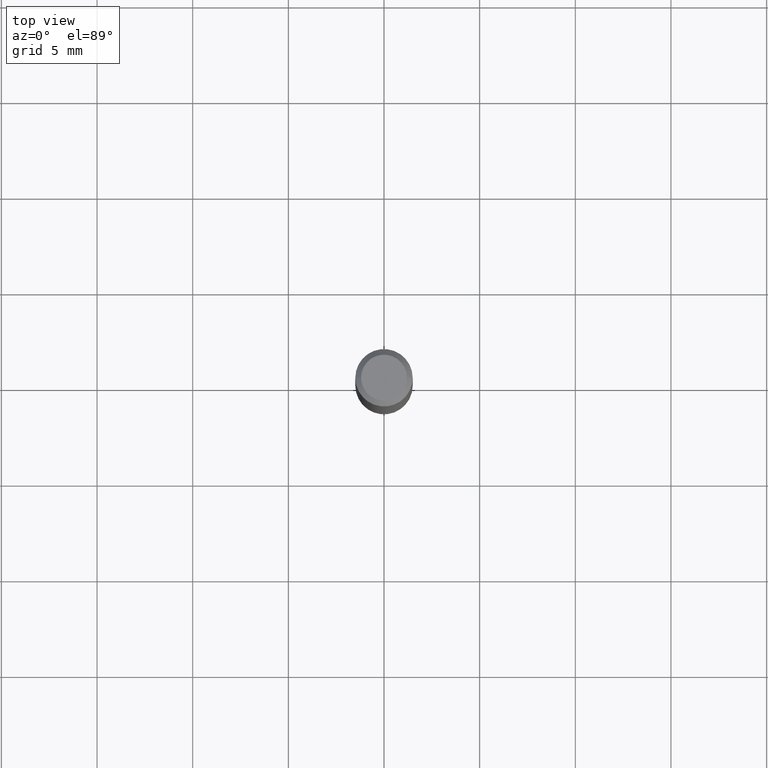
[diagram: clean part render]
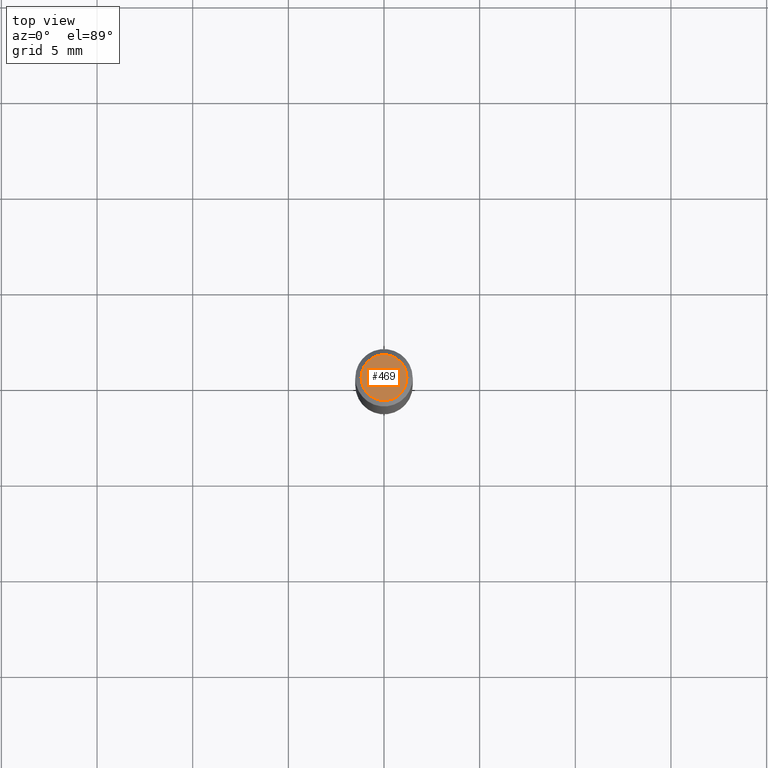
[diagram: same view with one face highlighted and labeled with its STEP entity id]
A machine part, top view. The second image highlights one B-rep face of the part: STEP entity #469.
In plain terms, the highlighted planar face has unit normal (0, -0, -1).
Its self-contained STEP definition (entity closure, byte-faithful):
#1 = DIRECTION ( 'NONE',  ( 1.000000000000000000, -6.982962677686266711E-15, 4.876185090822587894E-29 ) ) ;
#17 = FACE_OUTER_BOUND ( 'NONE', #81, .T. ) ;
#43 = AXIS2_PLACEMENT_3D ( 'NONE', #338, #153, #455 ) ;
#81 = EDGE_LOOP ( 'NONE', ( #351, #304 ) ) ;
#133 = VERTEX_POINT ( 'NONE', #212 ) ;
#146 = CIRCLE ( 'NONE', #286, 0.04724000000000000421 ) ;
#153 = DIRECTION ( 'NONE',  ( -2.445468806185136597E-29, 3.491481338843145583E-15, 1.000000000000000000 ) ) ;
#155 = AXIS2_PLACEMENT_3D ( 'NONE', #322, #328, #332 ) ;
#212 = CARTESIAN_POINT ( 'NONE',  ( 0.04724000000000000421, -3.852183633974369838E-16, -3.380025165621689721E-19 ) ) ;
#232 = DIRECTION ( 'NONE',  ( -2.445468806185136597E-29, 3.491481338843145583E-15, 1.000000000000000000 ) ) ;
#286 = AXIS2_PLACEMENT_3D ( 'NONE', #487, #232, #1 ) ;
#304 = ORIENTED_EDGE ( 'NONE', *, *, #490, .T. ) ;
#319 = PLANE ( 'NONE',  #155 ) ;
#322 = CARTESIAN_POINT ( 'NONE',  ( 4.132873053354867254E-48, -5.900647395337818946E-34, -1.690012582823346072E-19 ) ) ;
#324 = EDGE_CURVE ( 'NONE', #396, #133, #439, .T. ) ;
#328 = DIRECTION ( 'NONE',  ( 2.438088387897960049E-29, -3.491481338843145188E-15, -1.000000000000000000 ) ) ;
#332 = DIRECTION ( 'NONE',  ( -1.000000000000000000, 6.982962677686265922E-15, -4.876176775795935793E-29 ) ) ;
#338 = CARTESIAN_POINT ( 'NONE',  ( 8.265746106709734507E-48, -1.180129479067563789E-33, -3.380025165646692144E-19 ) ) ;
#351 = ORIENTED_EDGE ( 'NONE', *, *, #324, .T. ) ;
#395 = CARTESIAN_POINT ( 'NONE',  ( -0.04724000000000000421, 3.504923541997677355E-16, -3.380025165670481712E-19 ) ) ;
#396 = VERTEX_POINT ( 'NONE', #395 ) ;
#439 = CIRCLE ( 'NONE', #43, 0.04724000000000000421 ) ;
#455 = DIRECTION ( 'NONE',  ( 1.000000000000000000, -6.982962677686266711E-15, 4.876185090822587894E-29 ) ) ;
#469 = ADVANCED_FACE ( 'NONE', ( #17 ), #319, .F. ) ;
#487 = CARTESIAN_POINT ( 'NONE',  ( 8.265746106709734507E-48, -1.180129479067563789E-33, -3.380025165646692144E-19 ) ) ;
#490 = EDGE_CURVE ( 'NONE', #133, #396, #146, .T. ) ;